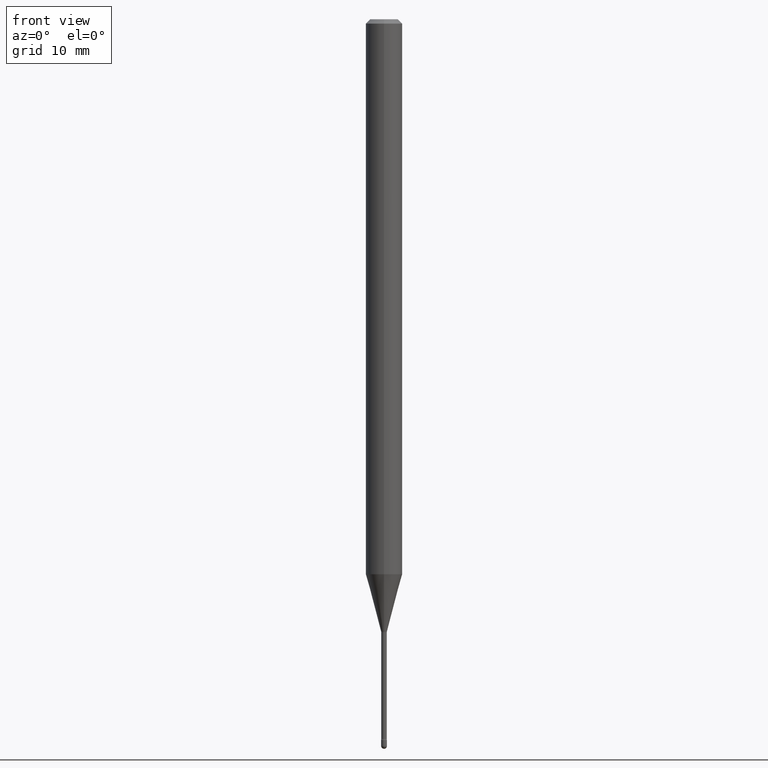
[diagram: clean part render]
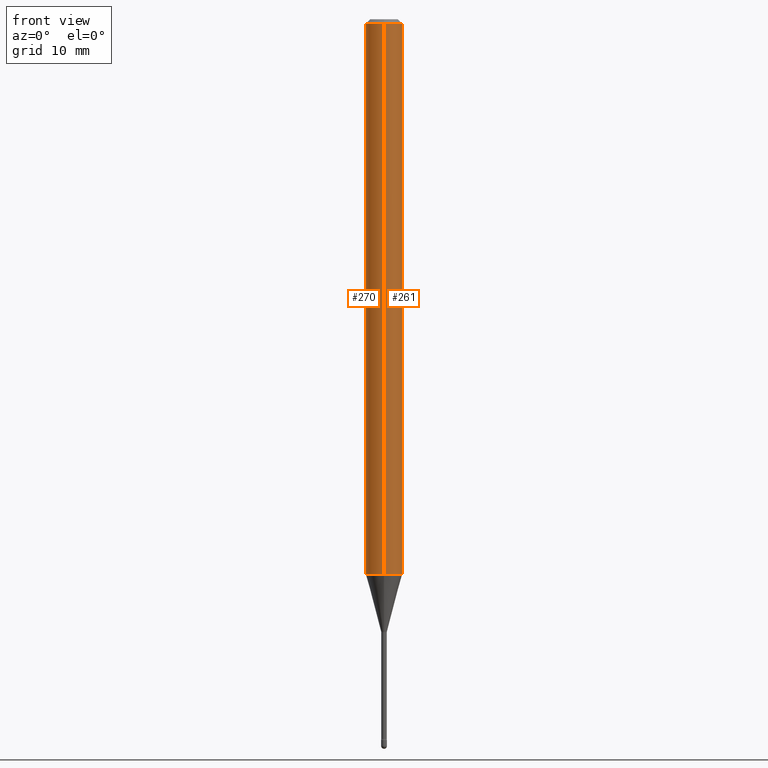
[diagram: same view with one multi-face feature highlighted, each face labeled with its STEP entity id]
A machine part, front view. The highlighted faces form ONE feature: a constant-radius fillet chain: 2 tangent blend faces with common blend radius 1.5875 mm. The faces share edges in the B-rep.
Their STEP definitions:
[1] entity #261 (Cylinder):
#2 = EDGE_CURVE ( 'NONE', #161, #15, #540, .T. ) ;
#15 = VERTEX_POINT ( 'NONE', #124 ) ;
#20 = CARTESIAN_POINT ( 'NONE',  ( -4.364351673553916201E-16, -0.06250000000000000000, 6.962846904283920876E-16 ) ) ;
#25 = DIRECTION ( 'NONE',  ( -2.445539106637340355E-29, 3.491380664594336784E-15, 1.000000000000000000 ) ) ;
#26 = LINE ( 'NONE', #221, #311 ) ;
#30 = CIRCLE ( 'NONE', #250, 0.06250000000000000000 ) ;
#45 = EDGE_CURVE ( 'NONE', #15, #141, #30, .T. ) ;
#76 = VECTOR ( 'NONE', #25, 39.37007874015748143 ) ;
#121 = CIRCLE ( 'NONE', #467, 0.06250000000000000000 ) ;
#124 = CARTESIAN_POINT ( 'NONE',  ( -4.364351673553912750E-16, -0.06250000000000005551, -0.01499999999999986587 ) ) ;
#125 = DIRECTION ( 'NONE',  ( -6.982962677686265922E-15, -1.000000000000000000, 3.491380664594336784E-15 ) ) ;
#139 = DIRECTION ( 'NONE',  ( -6.982962677686265922E-15, -1.000000000000000000, 4.370956789862821150E-15 ) ) ;
#141 = VERTEX_POINT ( 'NONE', #200 ) ;
#156 = CARTESIAN_POINT ( 'NONE',  ( 3.668308659956030169E-31, -5.237070996891533920E-17, -0.01500000000000008271 ) ) ;
#161 = VERTEX_POINT ( 'NONE', #245 ) ;
#164 = CYLINDRICAL_SURFACE ( 'NONE', #288, 0.06250000000000000000 ) ;
#175 = DIRECTION ( 'NONE',  ( -2.445539106637340355E-29, 3.491380664594336784E-15, 1.000000000000000000 ) ) ;
#185 = DIRECTION ( 'NONE',  ( -2.445539106637340355E-29, 3.491380664594336784E-15, 1.000000000000000000 ) ) ;
#200 = CARTESIAN_POINT ( 'NONE',  ( 4.440892098501093562E-16, 0.06249999999999993755, -0.01500000000000030129 ) ) ;
#219 = EDGE_LOOP ( 'NONE', ( #547, #382, #543, #246 ) ) ;
#221 = CARTESIAN_POINT ( 'NONE',  ( 4.440892098500625669E-16, 0.06250000000000000000, 2.598621073540999896E-16 ) ) ;
#224 = DIRECTION ( 'NONE',  ( -2.445539106637340355E-29, 3.491380664594336784E-15, 1.000000000000000000 ) ) ;
#245 = CARTESIAN_POINT ( 'NONE',  ( -4.364351673553452252E-16, -0.06250000000000664746, -1.901828102118092501 ) ) ;
#246 = ORIENTED_EDGE ( 'NONE', *, *, #2, .F. ) ;
#250 = AXIS2_PLACEMENT_3D ( 'NONE', #156, #437, #423 ) ;
#253 = EDGE_CURVE ( 'NONE', #521, #141, #26, .T. ) ;
#261 = ADVANCED_FACE ( 'NONE', ( #430 ), #164, .T. ) ;
#288 = AXIS2_PLACEMENT_3D ( 'NONE', #394, #175, #125 ) ;
#311 = VECTOR ( 'NONE', #185, 39.37007874015748143 ) ;
#382 = ORIENTED_EDGE ( 'NONE', *, *, #253, .T. ) ;
#394 = CARTESIAN_POINT ( 'NONE',  ( -1.169113584055446105E-44, 1.669184350826100908E-30, 4.780733988912460139E-16 ) ) ;
#423 = DIRECTION ( 'NONE',  ( -6.982962677686265922E-15, -1.000000000000000000, 3.483106191921935554E-15 ) ) ;
#430 = FACE_OUTER_BOUND ( 'NONE', #219, .T. ) ;
#431 = EDGE_CURVE ( 'NONE', #161, #521, #121, .T. ) ;
#433 = CARTESIAN_POINT ( 'NONE',  ( 4.440892098501090604E-16, 0.06249999999999336642, -1.901828102118093167 ) ) ;
#437 = DIRECTION ( 'NONE',  ( -2.445539106637340355E-29, 3.491380664594336784E-15, 1.000000000000000000 ) ) ;
#467 = AXIS2_PLACEMENT_3D ( 'NONE', #528, #224, #139 ) ;
#521 = VERTEX_POINT ( 'NONE', #433 ) ;
#528 = CARTESIAN_POINT ( 'NONE',  ( 4.650994997831669518E-29, -6.640005863117252053E-15, -1.901828102118092945 ) ) ;
#540 = LINE ( 'NONE', #20, #76 ) ;
#543 = ORIENTED_EDGE ( 'NONE', *, *, #45, .F. ) ;
#547 = ORIENTED_EDGE ( 'NONE', *, *, #431, .T. ) ;
[2] entity #270 (Cylinder):
#2 = EDGE_CURVE ( 'NONE', #161, #15, #540, .T. ) ;
#15 = VERTEX_POINT ( 'NONE', #124 ) ;
#20 = CARTESIAN_POINT ( 'NONE',  ( -4.364351673553916201E-16, -0.06250000000000000000, 6.962846904283920876E-16 ) ) ;
#23 = EDGE_CURVE ( 'NONE', #141, #15, #255, .T. ) ;
#25 = DIRECTION ( 'NONE',  ( -2.445539106637340355E-29, 3.491380664594336784E-15, 1.000000000000000000 ) ) ;
#26 = LINE ( 'NONE', #221, #311 ) ;
#70 = CIRCLE ( 'NONE', #77, 0.06250000000000000000 ) ;
#75 = CYLINDRICAL_SURFACE ( 'NONE', #134, 0.06250000000000000000 ) ;
#76 = VECTOR ( 'NONE', #25, 39.37007874015748143 ) ;
#77 = AXIS2_PLACEMENT_3D ( 'NONE', #390, #554, #83 ) ;
#79 = DIRECTION ( 'NONE',  ( -6.982962677686265922E-15, -1.000000000000000000, 3.491380664594336784E-15 ) ) ;
#83 = DIRECTION ( 'NONE',  ( -6.982962677686265922E-15, -1.000000000000000000, 4.370956789862821150E-15 ) ) ;
#124 = CARTESIAN_POINT ( 'NONE',  ( -4.364351673553912750E-16, -0.06250000000000005551, -0.01499999999999986587 ) ) ;
#130 = EDGE_LOOP ( 'NONE', ( #376, #319, #287, #302 ) ) ;
#134 = AXIS2_PLACEMENT_3D ( 'NONE', #474, #352, #79 ) ;
#141 = VERTEX_POINT ( 'NONE', #200 ) ;
#161 = VERTEX_POINT ( 'NONE', #245 ) ;
#185 = DIRECTION ( 'NONE',  ( -2.445539106637340355E-29, 3.491380664594336784E-15, 1.000000000000000000 ) ) ;
#200 = CARTESIAN_POINT ( 'NONE',  ( 4.440892098501093562E-16, 0.06249999999999993755, -0.01500000000000030129 ) ) ;
#221 = CARTESIAN_POINT ( 'NONE',  ( 4.440892098500625669E-16, 0.06250000000000000000, 2.598621073540999896E-16 ) ) ;
#243 = DIRECTION ( 'NONE',  ( -6.982962677686265922E-15, -1.000000000000000000, 3.483106191921935554E-15 ) ) ;
#245 = CARTESIAN_POINT ( 'NONE',  ( -4.364351673553452252E-16, -0.06250000000000664746, -1.901828102118092501 ) ) ;
#253 = EDGE_CURVE ( 'NONE', #521, #141, #26, .T. ) ;
#255 = CIRCLE ( 'NONE', #489, 0.06250000000000000000 ) ;
#270 = ADVANCED_FACE ( 'NONE', ( #564 ), #75, .T. ) ;
#287 = ORIENTED_EDGE ( 'NONE', *, *, #2, .T. ) ;
#290 = CARTESIAN_POINT ( 'NONE',  ( 3.668308659956030169E-31, -5.237070996891533920E-17, -0.01500000000000008271 ) ) ;
#301 = DIRECTION ( 'NONE',  ( -2.445539106637340355E-29, 3.491380664594336784E-15, 1.000000000000000000 ) ) ;
#302 = ORIENTED_EDGE ( 'NONE', *, *, #23, .F. ) ;
#311 = VECTOR ( 'NONE', #185, 39.37007874015748143 ) ;
#319 = ORIENTED_EDGE ( 'NONE', *, *, #345, .T. ) ;
#345 = EDGE_CURVE ( 'NONE', #521, #161, #70, .T. ) ;
#352 = DIRECTION ( 'NONE',  ( -2.445539106637340355E-29, 3.491380664594336784E-15, 1.000000000000000000 ) ) ;
#376 = ORIENTED_EDGE ( 'NONE', *, *, #253, .F. ) ;
#390 = CARTESIAN_POINT ( 'NONE',  ( 4.650994997831669518E-29, -6.640005863117252053E-15, -1.901828102118092945 ) ) ;
#433 = CARTESIAN_POINT ( 'NONE',  ( 4.440892098501090604E-16, 0.06249999999999336642, -1.901828102118093167 ) ) ;
#474 = CARTESIAN_POINT ( 'NONE',  ( -1.169113584055446105E-44, 1.669184350826100908E-30, 4.780733988912460139E-16 ) ) ;
#489 = AXIS2_PLACEMENT_3D ( 'NONE', #290, #301, #243 ) ;
#521 = VERTEX_POINT ( 'NONE', #433 ) ;
#540 = LINE ( 'NONE', #20, #76 ) ;
#554 = DIRECTION ( 'NONE',  ( -2.445539106637340355E-29, 3.491380664594336784E-15, 1.000000000000000000 ) ) ;
#564 = FACE_OUTER_BOUND ( 'NONE', #130, .T. ) ;